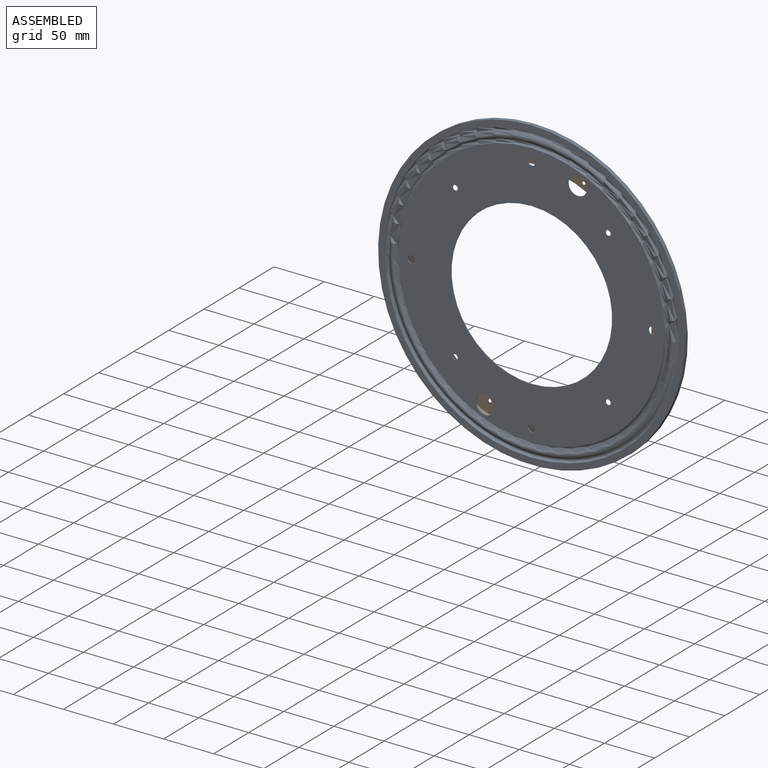
[diagram: assembled view]
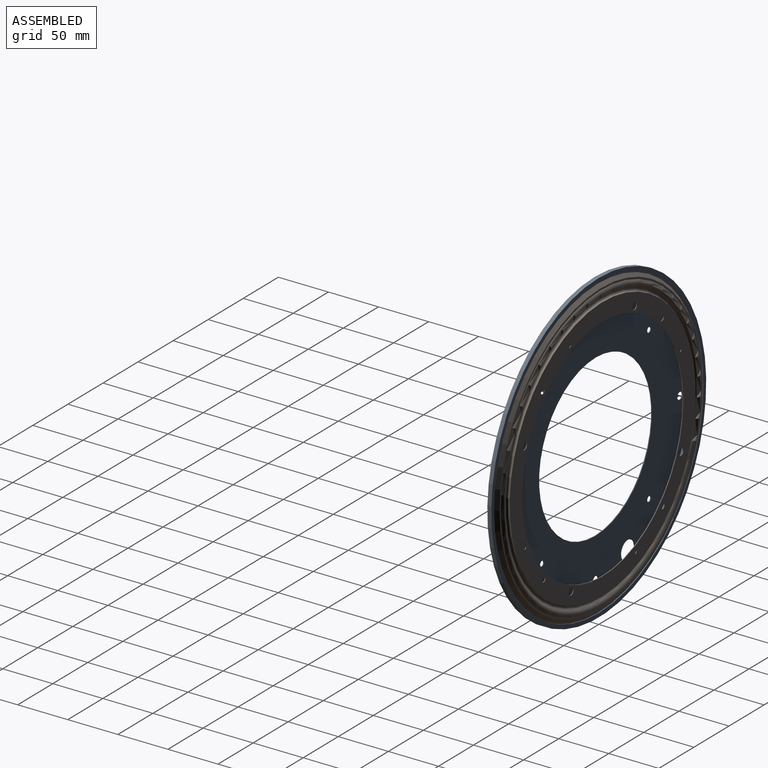
[diagram: assembled view, second angle]
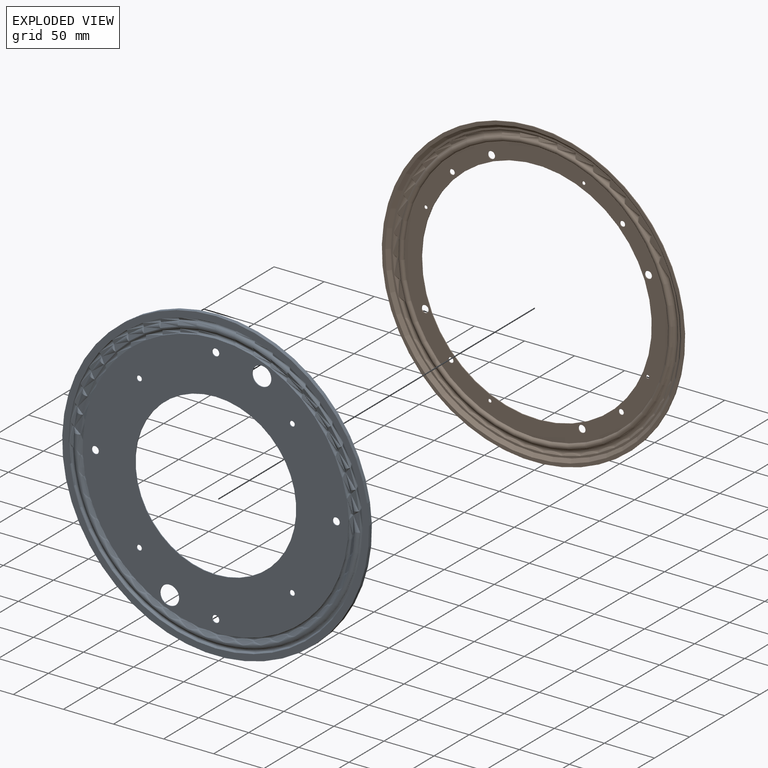
[diagram: exploded view]
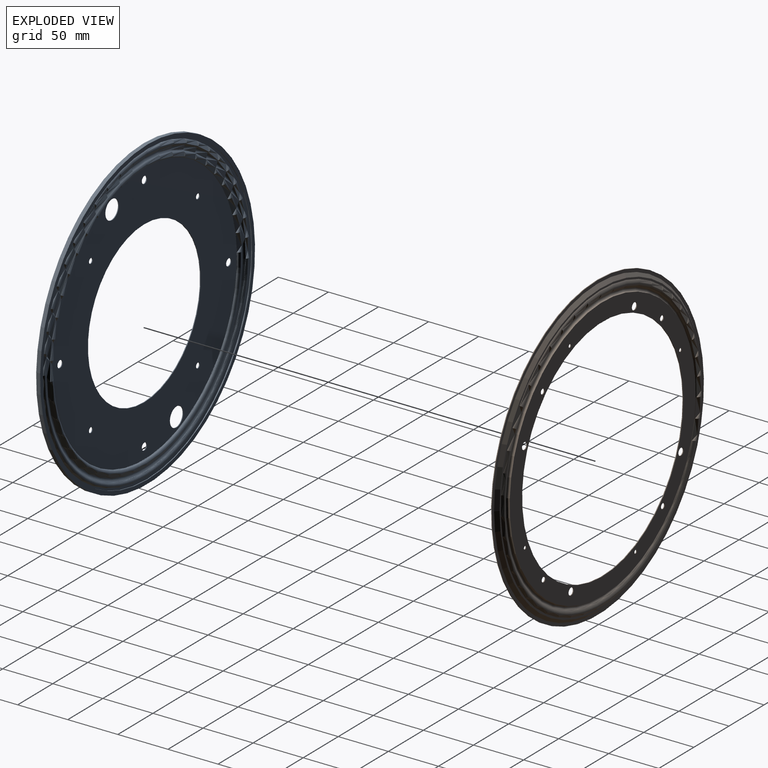
[diagram: exploded view, second angle]
ASSEMBLY  parts=2 mates=2
PART A: 30 faces, bbox 319.2x5.1x319.2 mm
  f0: cylinder r=2.58mm len=5.16mm, axis (0,1,0), area 11.9mm2, adj f24,f25
  f1: cylinder r=2.58mm len=5.16mm, axis (0,1,0), area 11.9mm2, adj f24,f25
  f2: cylinder r=2.58mm len=5.16mm, axis (0,1,0), area 11.9mm2, adj f24,f25
  f3: cylinder r=2.58mm len=5.16mm, axis (0,1,0), area 11.9mm2, adj f24,f25
  f4: cylinder r=3.57mm len=7.14mm, axis (0,1,0), area 16.5mm2, adj f24,f25
  f5: cylinder r=3.57mm len=7.14mm, axis (0,1,0), area 16.5mm2, adj f24,f25
  f6: cylinder r=3.57mm len=7.14mm, axis (0,1,0), area 16.5mm2, adj f24,f25
  f7: cylinder r=3.57mm len=7.14mm, axis (0,1,0), area 16.5mm2, adj f24,f25
  f8: cylinder r=9.53mm len=19.05mm, axis (0,1,0), area 44.1mm2, adj f24,f25
  f9: cylinder r=9.53mm len=19.05mm, axis (0,1,0), area 44.1mm2, adj f24,f25
  f10: cylinder r=131.93mm len=263.86mm, axis (0,1,0), area 52.6mm2, adj f11,f24
  f11: torus R=134.65mm, axis (0,1,0), area 5921.6mm2, adj f10,f12
  f12: torus R=139.7mm, axis (0,1,0), area 5737.9mm2, adj f11,f13
  f13: torus R=144.75mm, axis (0,1,0), area 6417mm2, adj f12,f14
  f14: cylinder r=147.47mm len=294.94mm, axis (0,1,0), area 58.8mm2, adj f13,f29
  f15: cylinder r=152.46mm len=304.93mm, axis (0,1,0), area 2396.7mm2, adj f28,f29
  f16: cylinder r=149.14mm len=298.27mm, axis (0,1,0), area 690.2mm2, adj f27,f28
  f17: cylinder r=153.2mm len=306.4mm, axis (0,1,0), area 3826.4mm2, adj f26,f27
  f18: cylinder r=146.73mm len=293.47mm, axis (0,1,0), area 737.7mm2, adj f19,f26
  f19: torus R=144.75mm, axis (0,1,0), area 4677mm2, adj f18,f20
  f20: torus R=139.7mm, axis (0,1,0), area 7043mm2, adj f19,f21
  f21: torus R=134.65mm, axis (0,1,0), area 4325.3mm2, adj f20,f22
  f22: cylinder r=132.67mm len=265.33mm, axis (0,1,0), area 666.9mm2, adj f21,f25
  f23: cylinder r=80.39mm len=160.78mm, axis (0,1,0), area 372.1mm2, adj f24,f25
  f24: plane 263.86x263.86mm, normal (0,1,0), area 33562.9mm2, adj f0,f1,f2,f3,f4,f5,f6,f7
  f25: plane 265.33x265.33mm, normal (0,-1,0), area 34175.2mm2, adj f0,f1,f2,f3,f4,f5,f6,f7
  f26: plane 306.4x306.4mm, normal (0,-1,0), area 6092.3mm2, adj f17,f18
  f27: plane 306.4x306.4mm, normal (0,1,0), area 3860.1mm2, adj f16,f17
  f28: plane 304.93x304.93mm, normal (0,-1,0), area 3152.7mm2, adj f15,f16
  f29: plane 304.93x304.93mm, normal (0,1,0), area 4704.1mm2, adj f14,f15
PART B: 28 faces, bbox 311x5.6x311 mm
  f0: cylinder r=1.65mm len=3.3mm, axis (0,1,0), area 7.6mm2, adj f22,f23
  f1: cylinder r=1.65mm len=3.3mm, axis (0,1,0), area 7.6mm2, adj f22,f23
  f2: cylinder r=1.65mm len=3.3mm, axis (0,1,0), area 7.6mm2, adj f22,f23
  f3: cylinder r=1.65mm len=3.3mm, axis (0,1,0), area 7.6mm2, adj f22,f23
  f4: cylinder r=2.58mm len=5.16mm, axis (0,1,0), area 11.9mm2, adj f22,f23
  f5: cylinder r=2.58mm len=5.16mm, axis (0,1,0), area 11.9mm2, adj f22,f23
  f6: cylinder r=2.58mm len=5.16mm, axis (0,1,0), area 11.9mm2, adj f22,f23
  f7: cylinder r=2.58mm len=5.16mm, axis (0,1,0), area 11.9mm2, adj f22,f23
  f8: cylinder r=3.57mm len=7.14mm, axis (0,1,0), area 16.5mm2, adj f22,f23
  f9: cylinder r=3.57mm len=7.14mm, axis (0,1,0), area 16.5mm2, adj f22,f23
  f10: cylinder r=3.57mm len=7.14mm, axis (0,1,0), area 16.5mm2, adj f22,f23
  f11: cylinder r=3.57mm len=7.14mm, axis (0,1,0), area 16.5mm2, adj f22,f23
  f12: cylinder r=132.67mm len=265.33mm, axis (0,1,0), area 666.9mm2, adj f13,f22
  f13: torus R=134.65mm, axis (0,1,0), area 4325.3mm2, adj f12,f14
  f14: torus R=139.7mm, axis (0,1,0), area 6811.8mm2, adj f13,f27
  f15: cone r=147.97mm half-angle=45deg, axis (0,-1,0), area 4186.1mm2, adj f26,f27
  f16: cylinder r=151.17mm len=302.34mm, axis (0,1,0), area 699.6mm2, adj f25,f26
  f17: cone r=147.66mm half-angle=45deg, axis (0,-1,0), area 4177.4mm2, adj f24,f25
  f18: torus R=139.7mm, axis (0,1,0), area 5874.7mm2, adj f19,f24
  f19: torus R=134.65mm, axis (0,1,0), area 5921.6mm2, adj f18,f20
  f20: cylinder r=131.93mm len=263.86mm, axis (0,1,0), area 52.6mm2, adj f19,f23
  f21: cylinder r=114.9mm len=229.79mm, axis (0,1,0), area 531.8mm2, adj f22,f23
  f22: plane 265.33x265.33mm, normal (0,1,0), area 13541.1mm2, adj f0,f1,f2,f3,f4,f5,f6,f7
  f23: plane 263.86x263.86mm, normal (0,-1,0), area 12928.8mm2, adj f0,f1,f2,f3,f4,f5,f6,f7
  f24: plane 288.88x288.88mm, normal (0,-1,0), area 1733.1mm2, adj f17,f18
  f25: plane 302.34x302.34mm, normal (0,-1,0), area 3292.6mm2, adj f16,f17
  f26: plane 302.34x302.34mm, normal (0,1,0), area 3009.3mm2, adj f15,f16
  f27: plane 289.49x289.49mm, normal (0,1,0), area 1650.5mm2, adj f14,f15
PLACE A at identity fixed
PLACE B rot(axis=(0,-1,0),22.1deg) t=(0,0,0)mm
MATE cylindrical B.f12 <-> A.f10  axis (0,1,0) through (0,3.98,0)mm
MATE planar A.f10 <-> B.f12  axis (0,1,0) through (0,-3.24,0)mm
